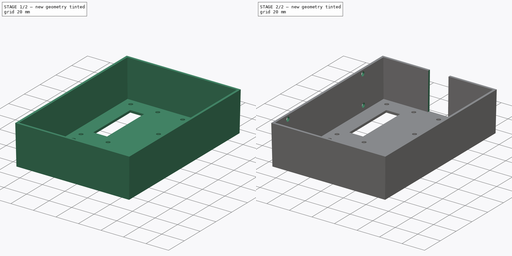
[diagram: build sequence overview — one tinted view per stage of 2, left to right]
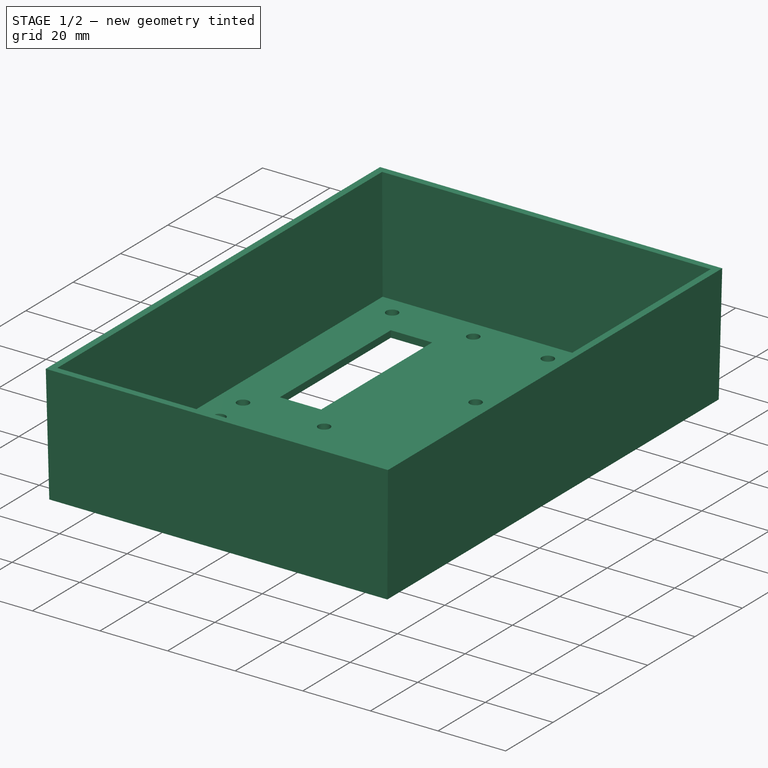
[diagram: stage 1 of 2 — iso view after this stage's code; geometry added in this stage tinted green]
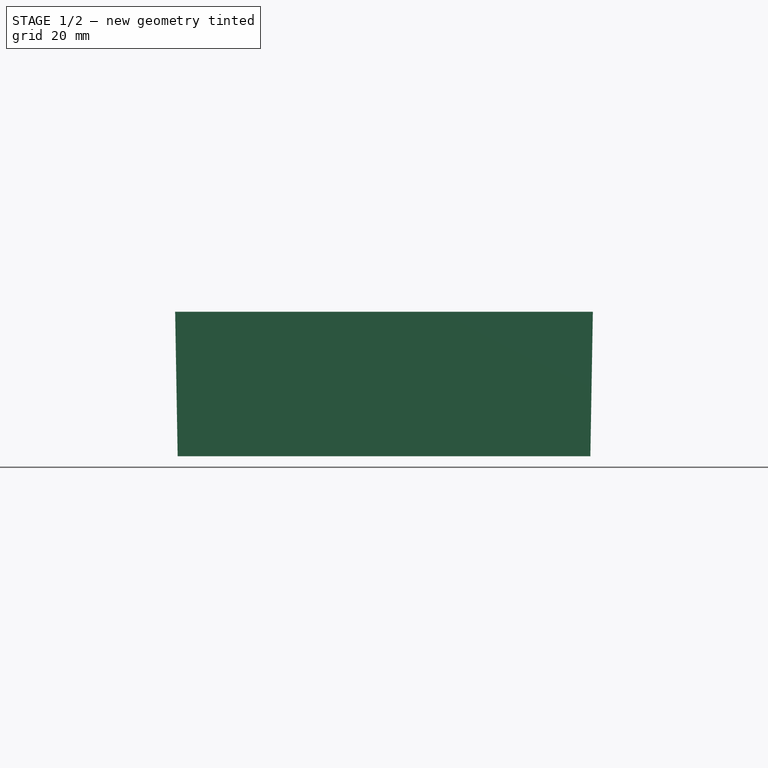
[diagram: stage 1 of 2 — front view after this stage's code; geometry added in this stage tinted green]
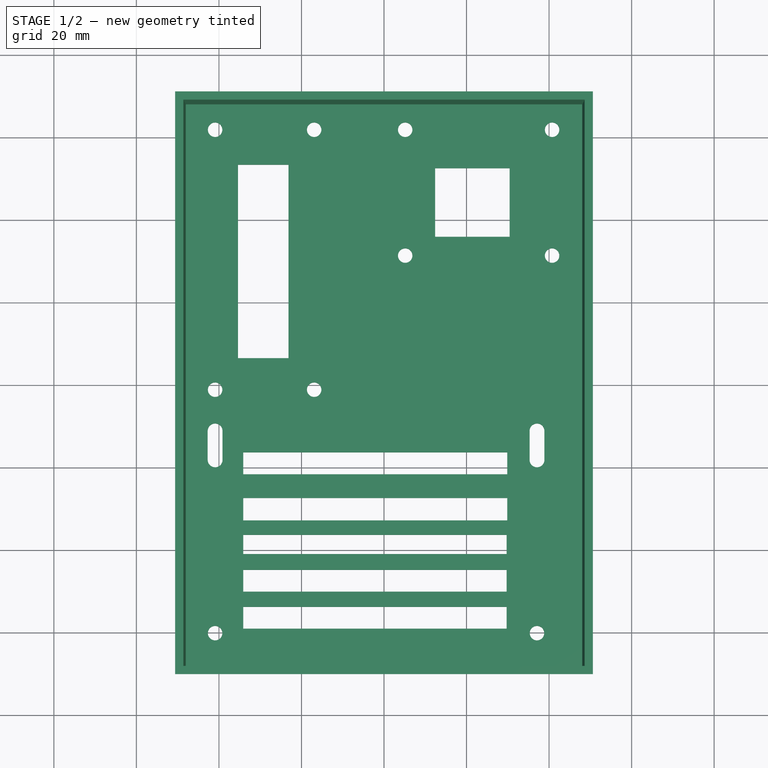
[diagram: stage 1 of 2 — top view after this stage's code; geometry added in this stage tinted green]
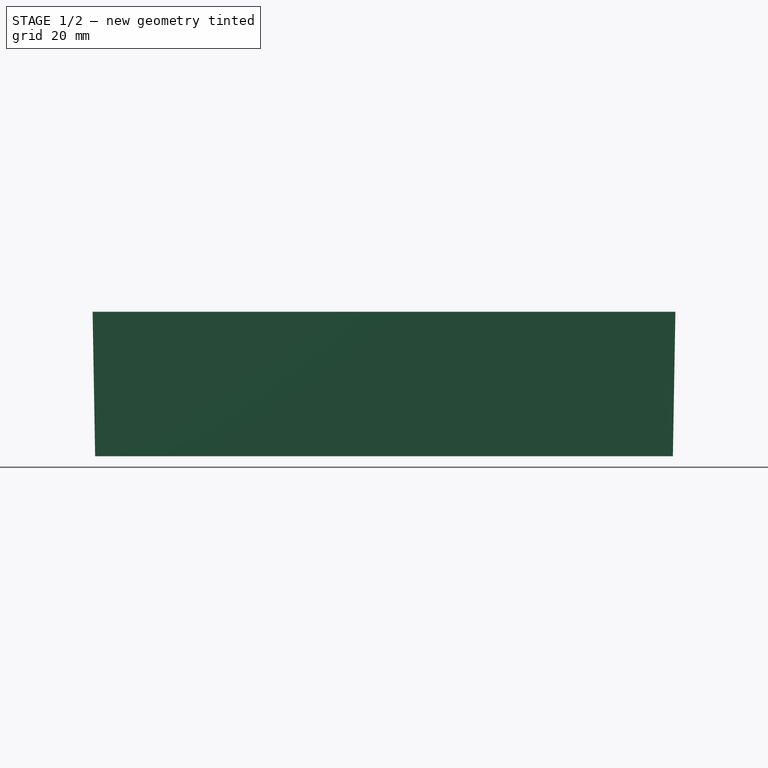
[diagram: stage 1 of 2 — right view after this stage's code; geometry added in this stage tinted green]
FCSTD DOCUMENT  (FreeCAD 1.0R38641 +468 (Git))
Label: box_v2
License: All rights reserved
LicenseURL: https://en.wikipedia.org/wiki/All_rights_reserved
objects: Sketcher::SketchObject×4, PartDesign::Pad×2, PartDesign::Pocket×1, PartDesign::Hole×1, PartDesign::Body×1
note: 21 computed .brp shape members not serialized (recipe doc carries the construction recipe); baked Part::Feature solids carry a one-line shape summary decoded from their .brp

FEATURE [Sketcher::SketchObject] Sketch
  ArcFitTolerance = 1e-06
  AttachmentSupport = -> [XY_Plane]
  FullyConstrained = false
  MakeInternals = false
  MapMode = 5
  sketch-geometry (50):
    g0: LineSegment StartX=-50 StartY=70 StartZ=0 EndX=-50 EndY=-70 EndZ=0
    g1: LineSegment StartX=-50 StartY=-70 StartZ=0 EndX=50 EndY=-70 EndZ=0
    g2: LineSegment StartX=50 StartY=-70 StartZ=0 EndX=50 EndY=70 EndZ=0
    g3: LineSegment StartX=50 StartY=70 StartZ=0 EndX=-50 EndY=70 EndZ=0
    g4: Circle CenterX=5.13288 CenterY=31.3917 CenterZ=0 NormalX=0 NormalY=0 NormalZ=1 AngleXU=0 Radius=1.75
    g5: Circle CenterX=37.074 CenterY=-60.1083 CenterZ=0 NormalX=0 NormalY=0 NormalZ=1 AngleXU=0 Radius=1.75
    g6: Circle CenterX=-40.926 CenterY=-60.1083 CenterZ=0 NormalX=0 NormalY=0 NormalZ=1 AngleXU=0 Radius=1.75
    g7: Circle CenterX=5.13288 CenterY=61.8917 CenterZ=0 NormalX=0 NormalY=0 NormalZ=1 AngleXU=0 Radius=1.75
    g8: Circle CenterX=40.7329 CenterY=31.3917 CenterZ=0 NormalX=0 NormalY=0 NormalZ=1 AngleXU=0 Radius=1.75
    g9: Circle CenterX=40.7329 CenterY=61.8917 CenterZ=0 NormalX=0 NormalY=0 NormalZ=1 AngleXU=0 Radius=1.75
    g10: Circle CenterX=-40.926 CenterY=-1.1083 CenterZ=0 NormalX=0 NormalY=0 NormalZ=1 AngleXU=0 Radius=1.75
    g11: Circle CenterX=-40.926 CenterY=61.8917 CenterZ=0 NormalX=0 NormalY=0 NormalZ=1 AngleXU=0 Radius=1.75
    g12: Circle CenterX=-16.926 CenterY=-1.1083 CenterZ=0 NormalX=0 NormalY=0 NormalZ=1 AngleXU=0 Radius=1.75
    g13: Circle CenterX=-16.926 CenterY=61.8917 CenterZ=0 NormalX=0 NormalY=0 NormalZ=1 AngleXU=0 Radius=1.75
    g14: ArcOfCircle CenterX=-40.926 CenterY=-11.1083 CenterZ=0 NormalX=0 NormalY=0 NormalZ=1 AngleXU=0 Radius=1.8 StartAngle=5e-16 EndAngle=3.14159
    g15: ArcOfCircle CenterX=-40.926 CenterY=-18.1083 CenterZ=0 NormalX=0 NormalY=0 NormalZ=1 AngleXU=0 Radius=1.8 StartAngle=3.14159 EndAngle=6.28319
    g16: LineSegment StartX=-39.126 StartY=-11.1083 StartZ=0 EndX=-39.126 EndY=-18.1083 EndZ=0
    g17: LineSegment StartX=-42.726 StartY=-11.1083 StartZ=0 EndX=-42.726 EndY=-18.1083 EndZ=0
    g18: ArcOfCircle CenterX=37.074 CenterY=-11.1083 CenterZ=0 NormalX=0 NormalY=0 NormalZ=1 AngleXU=0 Radius=1.8 StartAngle=0 EndAngle=3.14159
    g19: ArcOfCircle CenterX=37.074 CenterY=-18.1083 CenterZ=0 NormalX=0 NormalY=0 NormalZ=1 AngleXU=0 Radius=1.8 StartAngle=3.14159 EndAngle=6.28319
    g20: LineSegment StartX=38.874 StartY=-11.1083 StartZ=0 EndX=38.874 EndY=-18.1083 EndZ=0
    g21: LineSegment StartX=35.274 StartY=-11.1083 StartZ=0 EndX=35.274 EndY=-18.1083 EndZ=0
    g22: LineSegment StartX=-35.3898 StartY=53.4276 StartZ=0 EndX=-35.3898 EndY=6.52764 EndZ=0
    g23: LineSegment StartX=-35.3898 StartY=6.52764 StartZ=0 EndX=-23.1551 EndY=6.52764 EndZ=0
    g24: LineSegment StartX=-23.1551 StartY=6.52764 StartZ=0 EndX=-23.1551 EndY=53.4276 EndZ=0
    g25: LineSegment StartX=-23.1551 StartY=53.4276 StartZ=0 EndX=-35.3898 EndY=53.4276 EndZ=0
    g26: LineSegment StartX=12.3837 StartY=52.5532 StartZ=0 EndX=12.3837 EndY=35.9491 EndZ=0
    g27: LineSegment StartX=12.3837 StartY=35.9491 StartZ=0 EndX=30.4443 EndY=35.9491 EndZ=0
    g28: LineSegment StartX=30.4443 StartY=35.9491 StartZ=0 EndX=30.4443 EndY=52.5532 EndZ=0
    g29: LineSegment StartX=30.4443 StartY=52.5532 StartZ=0 EndX=12.3837 EndY=52.5532 EndZ=0
    g30: LineSegment StartX=-34.0929 StartY=-27.3515 StartZ=0 EndX=-34.0929 EndY=-32.787 EndZ=0
    g31: LineSegment StartX=-34.0929 StartY=-32.787 StartZ=0 EndX=29.8693 EndY=-32.787 EndZ=0
    g32: LineSegment StartX=29.8693 StartY=-32.787 StartZ=0 EndX=29.8693 EndY=-27.3515 EndZ=0
    g33: LineSegment StartX=29.8693 StartY=-27.3515 StartZ=0 EndX=-34.0929 EndY=-27.3515 EndZ=0
    g34: LineSegment StartX=-34.0929 StartY=-50.053 StartZ=0 EndX=-34.0929 EndY=-44.7773 EndZ=0
    g35: LineSegment StartX=-34.0929 StartY=-44.7773 StartZ=0 EndX=29.7094 EndY=-44.7773 EndZ=0
    g36: LineSegment StartX=29.7094 StartY=-44.7773 StartZ=0 EndX=29.7094 EndY=-50.053 EndZ=0
    g37: LineSegment StartX=29.7094 StartY=-50.053 StartZ=0 EndX=-34.0929 EndY=-50.053 EndZ=0
    g38: LineSegment StartX=-34.0929 StartY=-36.3042 StartZ=0 EndX=-34.0929 EndY=-40.9404 EndZ=0
    g39: LineSegment StartX=-34.0929 StartY=-40.9404 StartZ=0 EndX=29.7094 EndY=-40.9404 EndZ=0
    g40: LineSegment StartX=29.7094 StartY=-40.9404 StartZ=0 EndX=29.7094 EndY=-36.3042 EndZ=0
    g41: LineSegment StartX=29.7094 StartY=-36.3042 StartZ=0 EndX=-34.0929 EndY=-36.3042 EndZ=0
    g42: LineSegment StartX=-34.0929 StartY=-53.7299 StartZ=0 EndX=-34.0929 EndY=-59.0056 EndZ=0
    g43: LineSegment StartX=-34.0929 StartY=-59.0056 StartZ=0 EndX=29.7094 EndY=-59.0056 EndZ=0
    g44: LineSegment StartX=29.7094 StartY=-59.0056 StartZ=0 EndX=29.7094 EndY=-53.7299 EndZ=0
    g45: LineSegment StartX=29.7094 StartY=-53.7299 StartZ=0 EndX=-34.0929 EndY=-53.7299 EndZ=0
    g46: LineSegment StartX=-34.0929 StartY=-16.3001 StartZ=0 EndX=-34.0929 EndY=-21.5962 EndZ=0
    g47: LineSegment StartX=-34.0929 StartY=-21.5962 StartZ=0 EndX=29.8693 EndY=-21.5962 EndZ=0
    g48: LineSegment StartX=29.8693 StartY=-21.5962 StartZ=0 EndX=29.8693 EndY=-16.3001 EndZ=0
    g49: LineSegment StartX=29.8693 StartY=-16.3001 StartZ=0 EndX=-34.0929 EndY=-16.3001 EndZ=0
  constraints (122):
    c: Coincident(g0,g1)
    c: Coincident(g1,g2)
    c: Coincident(g2,g3)
    c: Coincident(g3,g0)
    c: Vertical(g0)
    c: Vertical(g2)
    c: Horizontal(g1)
    c: Horizontal(g3)
    c: Symmetric(g2,g0,g-1)
    c: DistanceY(g0,g0) = 140
    c: DistanceX(g3,g3) = 100
    c: Diameter(g4) = 3.5
    c: Diameter(g5) = 3.5
    c: Diameter(g6) = 3.5
    c: Diameter(g7) = 3.5
    c: Diameter(g8) = 3.5
    c: Diameter(g9) = 3.5
    c: Diameter(g10) = 3.5
    c: Diameter(g11) = 3.5
    c: Diameter(g12) = 3.5
    c: Diameter(g13) = 3.5
    c: DistanceX(g6,g5) = 78
    c: DistanceY(g10,g11) = 63
    c: DistanceX(g11,g13) = 24
    c: Horizontal(g11,g13)
    c: Vertical(g13,g12)
    c: Horizontal(g10,g12)
    c: Horizontal(g9,g7)
    c: Horizontal(g4,g8)
    c: DistanceX(g4,g8) = 35.6
    c: DistanceX(g7,g9) = 35.6
    c: Vertical(g4,g7)
    c: DistanceY(g4,g7) = 30.5
    c: Horizontal(g13,g7)
    c: Vertical(g10,g11)
    c: Tangent(g14,g16) = 1.5708
    c: Tangent(g14,g17) = -1.5708
    c: Tangent(g15,g16) = 1.5708
    c: Tangent(g15,g17) = -1.5708
    c: Equal(g14,g15)
    c: Vertical(g17)
    c: Radius(g14) = 1.8
    c: DistanceY(g16,g16) = 7
    c: Vertical(g15,g6)
    c: Tangent(g18,g20) = 1.5708
    c: Tangent(g18,g21) = -1.5708
    c: Tangent(g19,g20) = 1.5708
    c: Tangent(g19,g21) = -1.5708
    c: Equal(g18,g19)
    c: Vertical(g21)
    c: Radius(g18) = 1.8
    c: DistanceY(g20,g20) = 7
    c: Vertical(g10,g6)
    c: Vertical(g19,g5)
    c: Horizontal(g18,g14)
    c: DistanceY(g6,g15) = 42
    c: DistanceY(g14,g10) = 10
    c: Coincident(g22,g23)
    c: Coincident(g23,g24)
    c: Coincident(g24,g25)
    c: Coincident(g25,g22)
    c: Vertical(g22)
    c: Vertical(g24)
    c: Horizontal(g23)
    c: Horizontal(g25)
    c: Coincident(g26,g27)
    c: Coincident(g27,g28)
    c: Coincident(g28,g29)
    c: Coincident(g29,g26)
    c: Vertical(g26)
    c: Vertical(g28)
    c: Horizontal(g27)
    c: Horizontal(g29)
    c: Horizontal(g5,g6)
    c: DistanceY(g24,g24) = 46.9
    c: Coincident(g30,g31)
    c: Coincident(g31,g32)
    c: Coincident(g32,g33)
    c: Coincident(g33,g30)
    c: Vertical(g30)
    c: Vertical(g32)
    c: Horizontal(g31)
    c: Horizontal(g33)
    c: Coincident(g34,g35)
    c: Coincident(g35,g36)
    c: Coincident(g36,g37)
    c: Coincident(g37,g34)
    c: Vertical(g34)
    c: Vertical(g36)
    c: Horizontal(g35)
    c: Horizontal(g37)
    c: Coincident(g38,g39)
    c: Coincident(g39,g40)
    c: Coincident(g40,g41)
    c: Coincident(g41,g38)
    c: Vertical(g38)
    c: Vertical(g40)
    c: Horizontal(g39)
    c: Horizontal(g41)
    c: Coincident(g42,g43)
    c: Coincident(g43,g44)
    c: Coincident(g44,g45)
    c: Coincident(g45,g42)
    c: Vertical(g42)
    c: Vertical(g44)
    c: Horizontal(g43)
    c: Horizontal(g45)
    c: Coincident(g46,g47)
    c: Coincident(g47,g48)
    c: Coincident(g48,g49)
    c: Coincident(g49,g46)
    c: Vertical(g46)
    c: Vertical(g48)
    c: Horizontal(g47)
    c: Horizontal(g49)
    c: Vertical(g32,g47)
    c: Vertical(g46,g30)
    c: Vertical(g38,g30)
    c: Vertical(g38,g34)
    c: Vertical(g35,g39)
    c: Vertical(g42,g34)
    c: Vertical(g44,g36)
FEATURE [PartDesign::Pad] Pad
  Direction = (0,0,1)
  Length = 2
  Length2 = 10
  Profile = -> Sketch
  ReferenceAxis = -> Sketch [N_Axis]
  Refine = true
  Suppressed = false
  Type = 0
FEATURE [Sketcher::SketchObject] Sketch001
  ArcFitTolerance = 1e-06
  AttachmentSupport = -> [XY_Plane]
  ExternalGeometry = -> [Pad]
  FullyConstrained = true
  MakeInternals = false
  MapMode = 5
  sketch-geometry (8):
    g0: LineSegment StartX=-50 StartY=70 StartZ=0 EndX=-50 EndY=-70 EndZ=0
    g1: LineSegment StartX=-50 StartY=-70 StartZ=0 EndX=50 EndY=-70 EndZ=0
    g2: LineSegment StartX=50 StartY=-70 StartZ=0 EndX=50 EndY=70 EndZ=0
    g3: LineSegment StartX=50 StartY=70 StartZ=0 EndX=-50 EndY=70 EndZ=0
    g4: LineSegment StartX=-48 StartY=68 StartZ=0 EndX=-48 EndY=-68 EndZ=0
    g5: LineSegment StartX=-48 StartY=-68 StartZ=0 EndX=48 EndY=-68 EndZ=0
    g6: LineSegment StartX=48 StartY=-68 StartZ=0 EndX=48 EndY=68 EndZ=0
    g7: LineSegment StartX=48 StartY=68 StartZ=0 EndX=-48 EndY=68 EndZ=0
  constraints (22):
    c: Coincident(g0,g1)
    c: Coincident(g1,g2)
    c: Coincident(g2,g3)
    c: Coincident(g3,g0)
    c: Vertical(g0)
    c: Vertical(g2)
    c: Horizontal(g1)
    c: Horizontal(g3)
    c: Coincident(g0,g-3)
    c: Coincident(g1,g-5)
    c: Coincident(g4,g5)
    c: Coincident(g5,g6)
    c: Coincident(g6,g7)
    c: Coincident(g7,g4)
    c: Vertical(g4)
    c: Vertical(g6)
    c: Horizontal(g5)
    c: Horizontal(g7)
    c: DistanceY(g0,g4) = 2
    c: DistanceX(g0,g4) = 2
    c: DistanceX(g5,g1) = 2
    c: DistanceY(g6,g2) = 2
FEATURE [PartDesign::Pad] Pad001
  BaseFeature = -> Pad
  Direction = (0,0,1)
  Length = 35
  Length2 = 10
  Profile = -> Sketch001
  ReferenceAxis = -> Sketch001 [N_Axis]
  Refine = true
  Suppressed = false
  TaperAngle = 1
  Type = 0
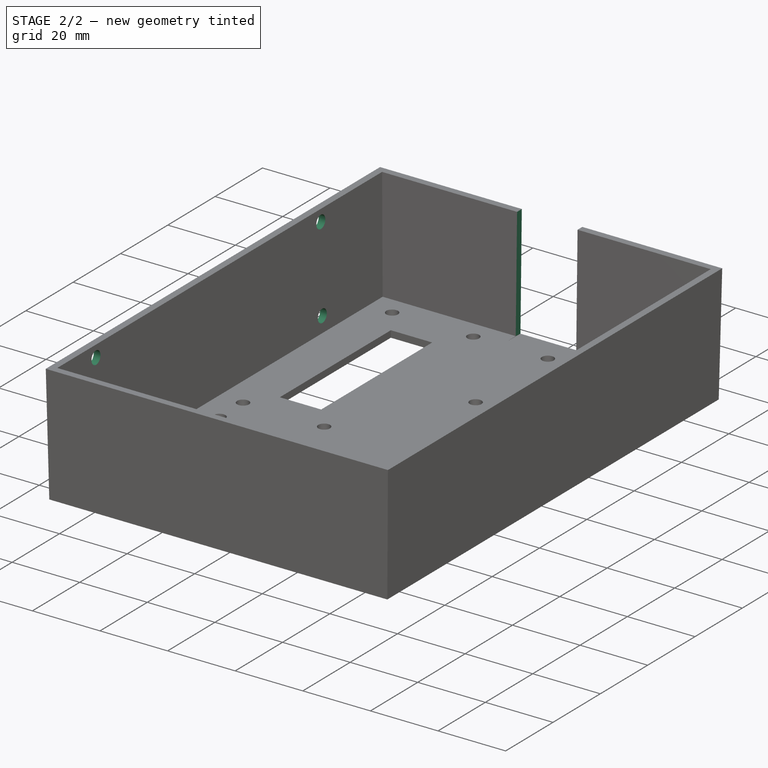
[diagram: stage 2 of 2 — iso view after this stage's code; geometry added in this stage tinted green]
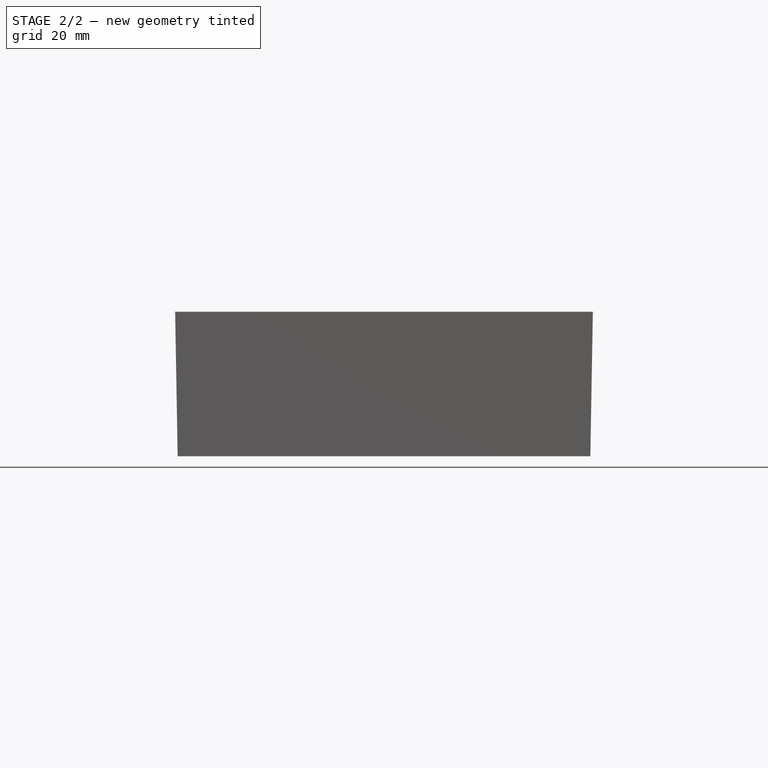
[diagram: stage 2 of 2 — front view after this stage's code; geometry added in this stage tinted green]
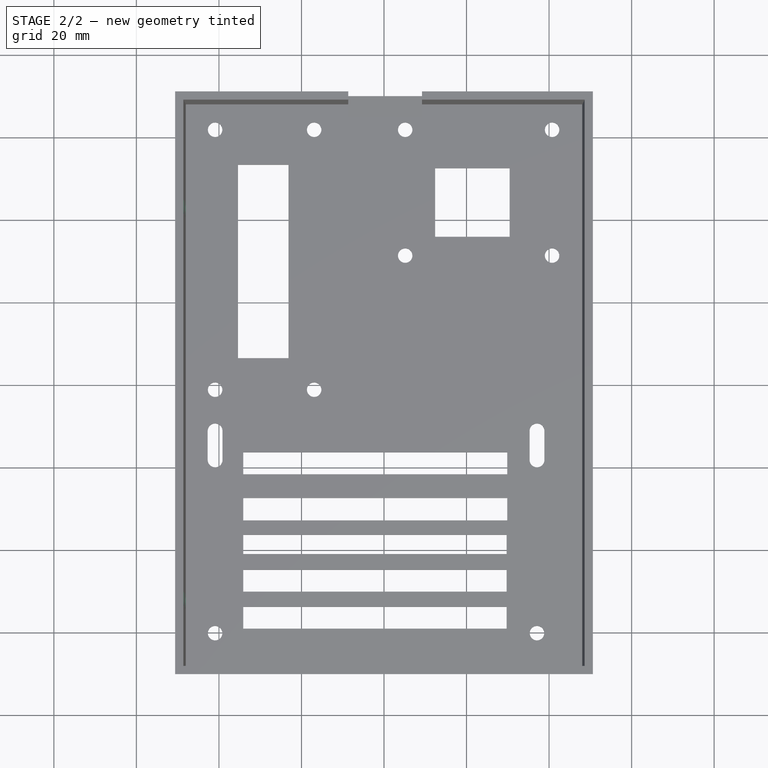
[diagram: stage 2 of 2 — top view after this stage's code; geometry added in this stage tinted green]
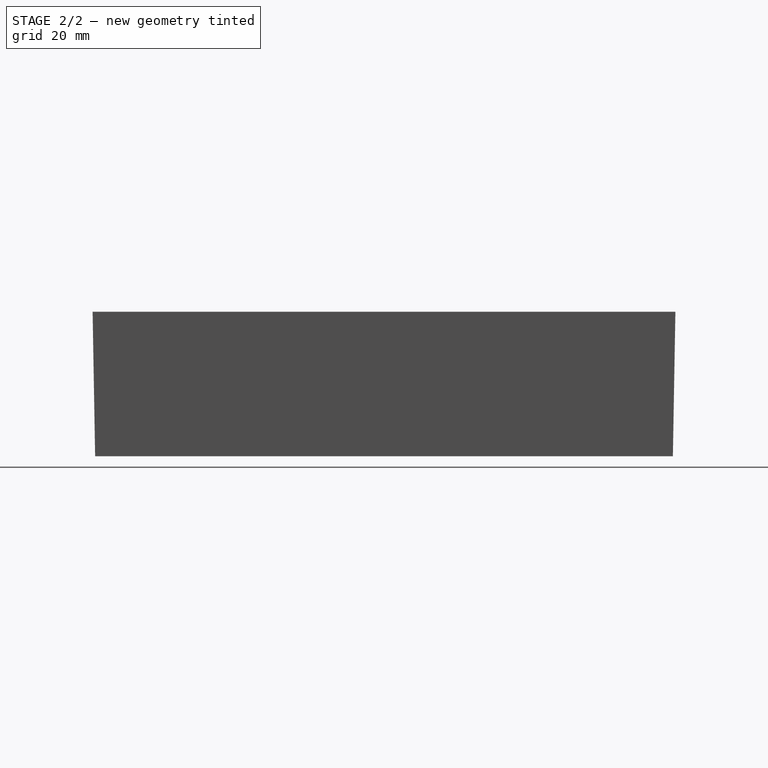
[diagram: stage 2 of 2 — right view after this stage's code; geometry added in this stage tinted green]
FEATURE [Sketcher::SketchObject] Sketch002
  ArcFitTolerance = 1e-06
  AttachmentSupport = -> [Pad001]
  ExternalGeometry = -> [Pad001]
  FullyConstrained = false
  MakeInternals = false
  MapMode = 5
  Placement = pos=(0,69.9787,-1.22148) rot=(0,0.71325,0.700909;3.14159rad)
  sketch-geometry (4):
    g0: LineSegment StartX=-9.21683 StartY=36.227 StartZ=0 EndX=-9.21683 EndY=3.10713 EndZ=0
    g1: LineSegment StartX=-9.21683 StartY=3.10713 StartZ=0 EndX=8.67315 EndY=3.10713 EndZ=0
    g2: LineSegment StartX=8.67315 StartY=3.10713 StartZ=0 EndX=8.67315 EndY=36.227 EndZ=0
    g3: LineSegment StartX=8.67315 StartY=36.227 StartZ=0 EndX=-9.21683 EndY=36.227 EndZ=0
  constraints (9):
    c: Coincident(g0,g1)
    c: Coincident(g1,g2)
    c: Coincident(g2,g3)
    c: Coincident(g3,g0)
    c: Vertical(g0)
    c: Vertical(g2)
    c: Horizontal(g1)
    c: Horizontal(g3)
    c: PointOnObject(g0,g-3)
FEATURE [PartDesign::Pocket] Pocket
  BaseFeature = -> Pad001
  Direction = (0,-0.999848,0.0174524)
  Length = 5
  Length2 = 5
  Profile = -> Sketch002
  ReferenceAxis = -> Sketch002 [N_Axis]
  Refine = true
  Suppressed = false
  Type = 0
FEATURE [Sketcher::SketchObject] Sketch003
  ArcFitTolerance = 1e-06
  AttachmentSupport = -> [Pocket]
  FullyConstrained = false
  MakeInternals = false
  MapMode = 5
  Placement = pos=(-49.9848,5e-16,-0.872487) rot=(0.58068,-0.58068,-0.570633;2.1045rad)
  sketch-geometry (4):
    g0: Circle CenterX=-42.6587 CenterY=32.4054 CenterZ=0 NormalX=0 NormalY=0 NormalZ=1 AngleXU=0 Radius=1.5
    g1: Circle CenterX=-42.6587 CenterY=7.40538 CenterZ=0 NormalX=0 NormalY=0 NormalZ=1 AngleXU=0 Radius=1.5
    g2: Circle CenterX=52.3413 CenterY=32.4054 CenterZ=0 NormalX=0 NormalY=0 NormalZ=1 AngleXU=0 Radius=1.5
    g3: Circle CenterX=52.3413 CenterY=7.40538 CenterZ=0 NormalX=0 NormalY=0 NormalZ=1 AngleXU=0 Radius=1.5
  constraints (10):
    c: Diameter(g0) = 3
    c: Diameter(g2) = 3
    c: Diameter(g3) = 3
    c: Diameter(g1) = 3
    c: DistanceY(g1,g0) = 25
    c: DistanceX(g0,g2) = 95
    c: Horizontal(g2,g0)
    c: Horizontal(g1,g3)
    c: Vertical(g0,g1)
    c: Vertical(g3,g2)
FEATURE [PartDesign::Hole] Hole
  BaseFeature = -> Pocket
  CustomThreadClearance = 0
  Depth = 25
  DepthType = 0
  Diameter = 3.8
  DrillForDepth = false
  DrillPoint = 1
  DrillPointAngle = 118
  HoleCutCountersinkAngle = 90
  HoleCutCustomValues = false
  HoleCutDepth = 0
  HoleCutDiameter = 6.1
  HoleCutType = 0
  ModelThread = false
  Profile = -> Sketch003
  Refine = true
  Suppressed = false
  Tapered = false
  TaperedAngle = 90
  ThreadClass = 0
  ThreadDepth = 25
  ThreadDepthType = 0
  ThreadDirection = 0
  ThreadFit = 0
  ThreadSize = 0
  ThreadType = 0
  Threaded = false
  UseCustomThreadClearance = false
FEATURE [PartDesign::Body] Body
  AllowCompound = false
  Group = -> [Sketch,Pad,Sketch001,Pad001,Sketch002,Pocket,Sketch003,Hole]
  Origin = -> Origin
  Tip = -> Hole
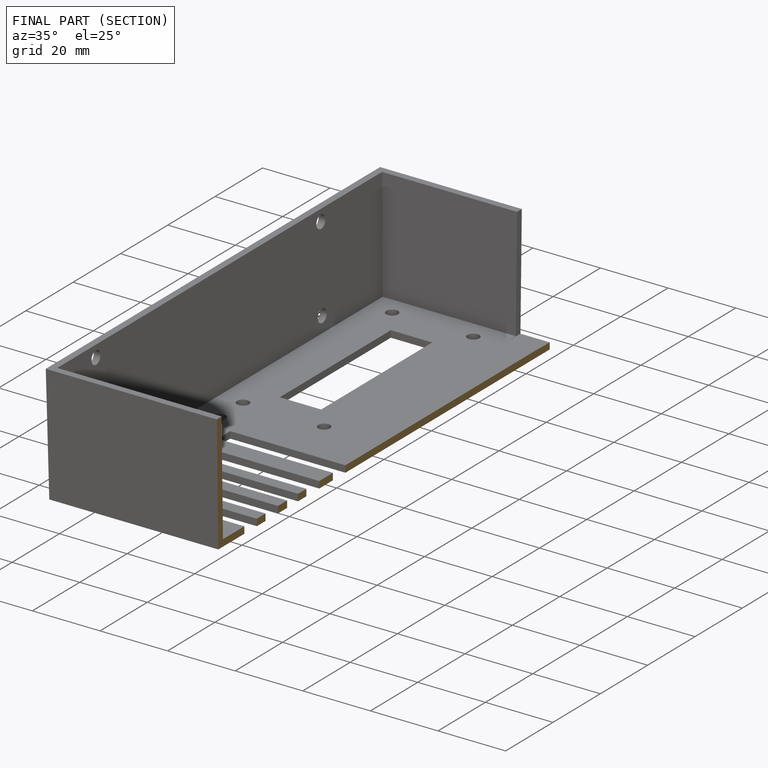
[diagram: finished part — half-section view (interior)]
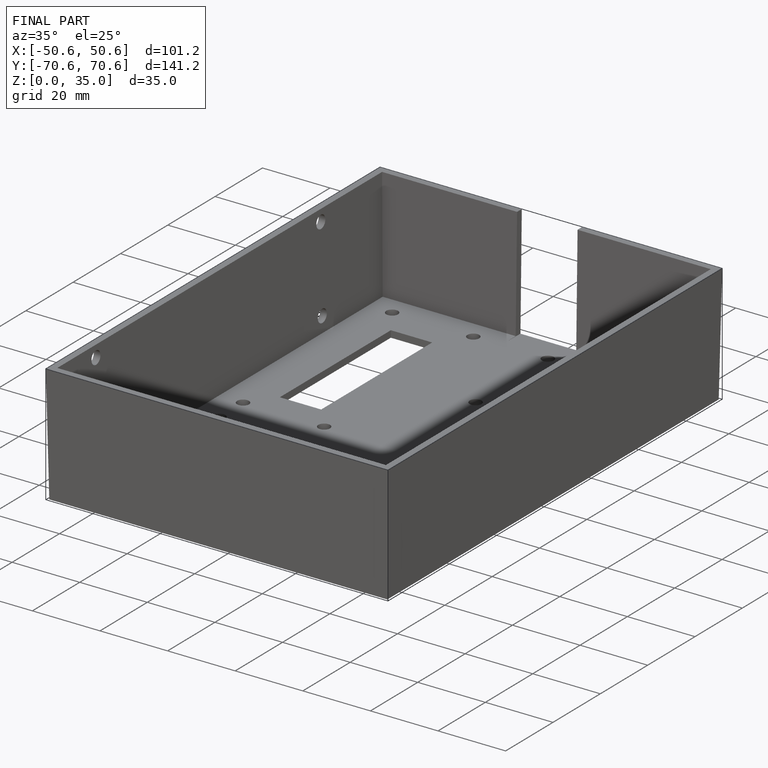
[diagram: finished part — iso view with bounding-box wireframe]
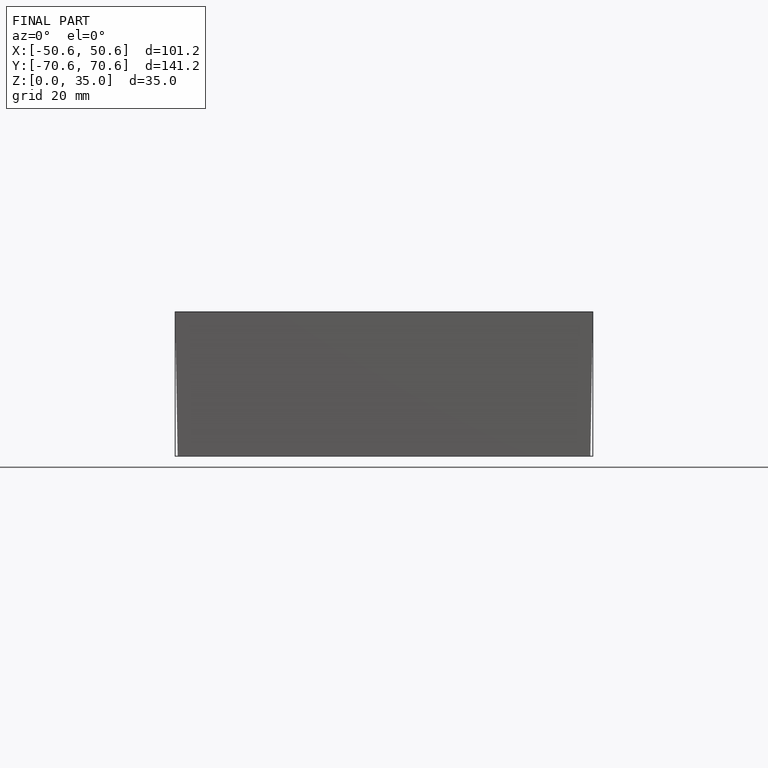
[diagram: finished part — front view with bounding-box wireframe]
